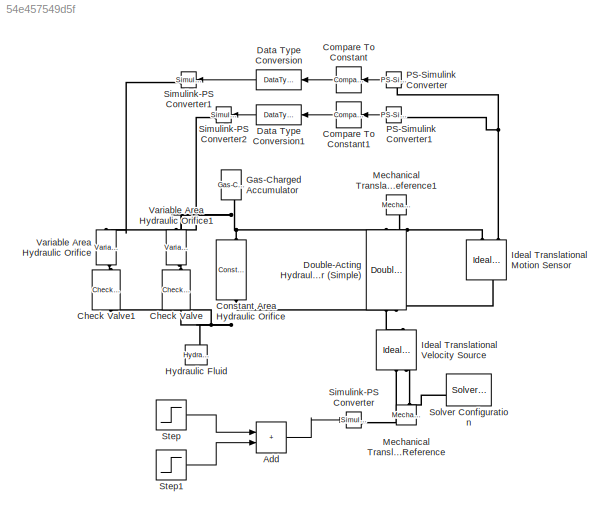
MODEL slx_54e457549d5f
KIND model
CONFIG AbsTol = auto
CONFIG EnableMultiTasking = off
CONFIG FixedStep = auto
CONFIG MaxStep = auto
CONFIG MinStep = auto
CONFIG RelTol = 1e-3
CONFIG SampleTimeConstraint = Unconstrained
CONFIG SolverName = VariableStepAuto
CONFIG StartTime = 0.0
CONFIG StopTime = 2
BLOCK [Sum] Add
  IconShape = rectangular
BLOCK [Reference] Check Valve  REF=sh_lib/Valves/Directional Valves/Check Valve
  NameLocation = left
  SourceBlock = sh_lib/Valves/Directional Valves/Check Valve
  SourceType = Check Valve
BLOCK [Reference] Check Valve1  REF=sh_lib/Valves/Directional Valves/Check Valve
  NameLocation = right
  SourceBlock = sh_lib/Valves/Directional Valves/Check Valve
  SourceType = Check Valve
BLOCK [Reference] Compare To Constant  REF=simulink/Logic and Bit
Operations/Compare
To Constant
  NameLocation = top
  SourceBlock = simulink/Logic and Bit\nOperations/Compare\nTo Constant
  SourceType = Compare To Constant
BLOCK [Reference] Compare To Constant1  REF=simulink/Logic and Bit
Operations/Compare
To Constant
  NameLocation = top
  SourceBlock = simulink/Logic and Bit\nOperations/Compare\nTo Constant
  SourceType = Compare To Constant
BLOCK [Reference] Constant Area Hydraulic Orifice  REF=fl_lib/Hydraulic/Hydraulic Elements/Constant Area
Hydraulic Orifice
  NameLocation = left
  SourceBlock = fl_lib/Hydraulic/Hydraulic Elements/Constant Area\nHydraulic Orifice
  SourceType = Constant Area\nHydraulic Orifice
BLOCK [DataTypeConversion] Data Type Conversion
  NameLocation = top
  OutDataTypeStr = double
  RndMeth = Floor
  SaturateOnIntegerOverflow = off
BLOCK [DataTypeConversion] Data Type Conversion1
  NameLocation = top
  OutDataTypeStr = double
  RndMeth = Floor
  SaturateOnIntegerOverflow = off
BLOCK [Reference] Double-Acting Hydraulic Cylinder (Simple)  REF=sh_lib/Hydraulic Cylinders/Double-Acting
Hydraulic Cylinder
(Simple)
  NameLocation = left
  SourceBlock = sh_lib/Hydraulic Cylinders/Double-Acting\nHydraulic Cylinder\n(Simple)
  SourceType = Double-Acting\nHydraulic Cylinder\n(Simple)
BLOCK [Reference] Gas-Charged Accumulator  REF=sh_lib/Accumulators/Gas-Charged
Accumulator
  NameLocation = right
  SourceBlock = sh_lib/Accumulators/Gas-Charged\nAccumulator
  SourceType = Gas-Charged\nAccumulator
BLOCK [Reference] Hydraulic Fluid  REF=sh_lib/Hydraulic Utilities/Hydraulic Fluid
  NameLocation = right
  SourceBlock = sh_lib/Hydraulic Utilities/Hydraulic Fluid
  SourceType = Hydraulic Fluid
BLOCK [Reference] Ideal Translational Motion Sensor  REF=fl_lib/Mechanical/Mechanical Sensors/Ideal Translational
Motion Sensor
  NameLocation = right
  SourceBlock = fl_lib/Mechanical/Mechanical Sensors/Ideal Translational\nMotion Sensor
  SourceType = Ideal Translational\nMotion Sensor
BLOCK [Reference] Ideal Translational Velocity Source  REF=fl_lib/Mechanical/Mechanical Sources/Ideal Translational
Velocity Source
  NameLocation = right
  SourceBlock = fl_lib/Mechanical/Mechanical Sources/Ideal Translational\nVelocity Source
  SourceType = Ideal Translational\nVelocity Source
BLOCK [Reference] Mechanical Translational Reference  REF=fl_lib/Mechanical/Translational
Elements/Mechanical
Translational
Reference
  NameLocation = right
  SourceBlock = fl_lib/Mechanical/Translational\nElements/Mechanical\nTranslational\nReference
  SourceType = Mechanical\nTranslational\nReference
BLOCK [Reference] Mechanical Translational Reference1  REF=fl_lib/Mechanical/Translational
Elements/Mechanical
Translational
Reference
  NameLocation = left
  SourceBlock = fl_lib/Mechanical/Translational\nElements/Mechanical\nTranslational\nReference
  SourceType = Mechanical\nTranslational\nReference
BLOCK [Reference] PS-Simulink Converter  REF=nesl_utility/PS-Simulink
Converter
  NameLocation = top
  SourceBlock = nesl_utility/PS-Simulink\nConverter
  SourceType = PS-Simulink\nConverter
BLOCK [Reference] PS-Simulink Converter1  REF=nesl_utility/PS-Simulink
Converter
  NameLocation = top
  SourceBlock = nesl_utility/PS-Simulink\nConverter
  SourceType = PS-Simulink\nConverter
BLOCK [Reference] Simulink-PS Converter  REF=nesl_utility/Simulink-PS
Converter
  SourceBlock = nesl_utility/Simulink-PS\nConverter
  SourceType = Simulink-PS\nConverter
BLOCK [Reference] Simulink-PS Converter1  REF=nesl_utility/Simulink-PS
Converter
  NameLocation = top
  SourceBlock = nesl_utility/Simulink-PS\nConverter
  SourceType = Simulink-PS\nConverter
BLOCK [Reference] Simulink-PS Converter2  REF=nesl_utility/Simulink-PS
Converter
  NameLocation = top
  SourceBlock = nesl_utility/Simulink-PS\nConverter
  SourceType = Simulink-PS\nConverter
BLOCK [Reference] Solver Configuration  REF=nesl_utility/Solver
Configuration
  NameLocation = top
  SourceBlock = nesl_utility/Solver\nConfiguration
  SourceType = Solver\nConfiguration
BLOCK [Step] Step
  After = 0.005
  SampleTime = 0
  Time = 0.5
BLOCK [Step] Step1
  After = -2*0.005
  SampleTime = 0
BLOCK [Reference] Variable Area Hydraulic Orifice  REF=fl_lib/Hydraulic/Hydraulic Elements/Variable Area
Hydraulic Orifice
  NameLocation = left
  SourceBlock = fl_lib/Hydraulic/Hydraulic Elements/Variable Area\nHydraulic Orifice
  SourceType = Variable Area\nHydraulic Orifice
BLOCK [Reference] Variable Area Hydraulic Orifice1  REF=fl_lib/Hydraulic/Hydraulic Elements/Variable Area
Hydraulic Orifice
  NameLocation = left
  SourceBlock = fl_lib/Hydraulic/Hydraulic Elements/Variable Area\nHydraulic Orifice
  SourceType = Variable Area\nHydraulic Orifice
LINE Add:1 -> Simulink-PS Converter:1
LINE Compare To Constant1:1 -> Data Type Conversion1:1
LINE Compare To Constant:1 -> Data Type Conversion:1
LINE Data Type Conversion1:1 -> Simulink-PS Converter2:1
LINE Data Type Conversion:1 -> Simulink-PS Converter1:1
LINE PS-Simulink Converter1:1 -> Compare To Constant1:1
LINE PS-Simulink Converter:1 -> Compare To Constant:1
LINE Step1:1 -> Add:2
LINE Step:1 -> Add:1
PNET net1: Check Valve1:LConn1 -- Check Valve:RConn1 -- Constant Area Hydraulic Orifice:RConn1 -- Double-Acting Hydraulic Cylinder (Simple):RConn2 -- Hydraulic Fluid:RConn1
PLINE Check Valve1:RConn1 -- Variable Area Hydraulic Orifice:RConn1
PLINE Check Valve:LConn1 -- Variable Area Hydraulic Orifice1:RConn1
PNET net2: Constant Area Hydraulic Orifice:LConn1 -- Double-Acting Hydraulic Cylinder (Simple):LConn2 -- Gas-Charged Accumulator:RConn1 -- Variable Area Hydraulic Orifice1:LConn2 -- Variable Area Hydraulic Orifice:LConn2
PNET net3: Double-Acting Hydraulic Cylinder (Simple):LConn1 -- Ideal Translational Motion Sensor:RConn1 -- Mechanical Translational Reference1:LConn1
PNET net4: Double-Acting Hydraulic Cylinder (Simple):RConn1 -- Ideal Translational Motion Sensor:LConn1 -- Ideal Translational Velocity Source:LConn1
PNET net5: Ideal Translational Motion Sensor:RConn3 -- PS-Simulink Converter1:LConn1 -- PS-Simulink Converter:LConn1
PLINE Ideal Translational Velocity Source:RConn1 -- Simulink-PS Converter:RConn1
PNET net6: Ideal Translational Velocity Source:RConn2 -- Mechanical Translational Reference:LConn1 -- Solver Configuration:RConn1
PLINE Simulink-PS Converter1:RConn1 -- Variable Area Hydraulic Orifice:LConn1
PLINE Simulink-PS Converter2:RConn1 -- Variable Area Hydraulic Orifice1:LConn1
note: PNET lines group multi-terminal physical nets as a canonical sorted terminal list (undirected conserving connections); 2-terminal nets keep the pairwise PLINE form
